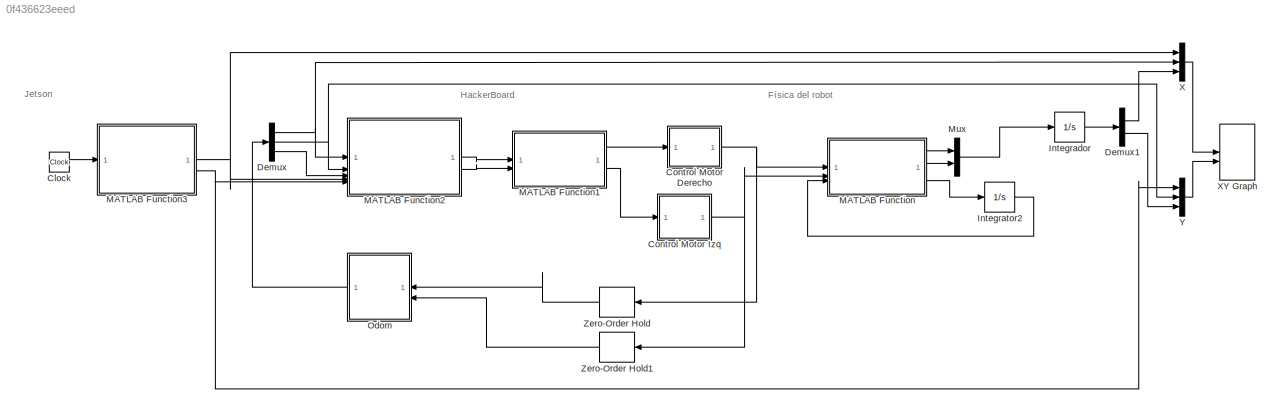
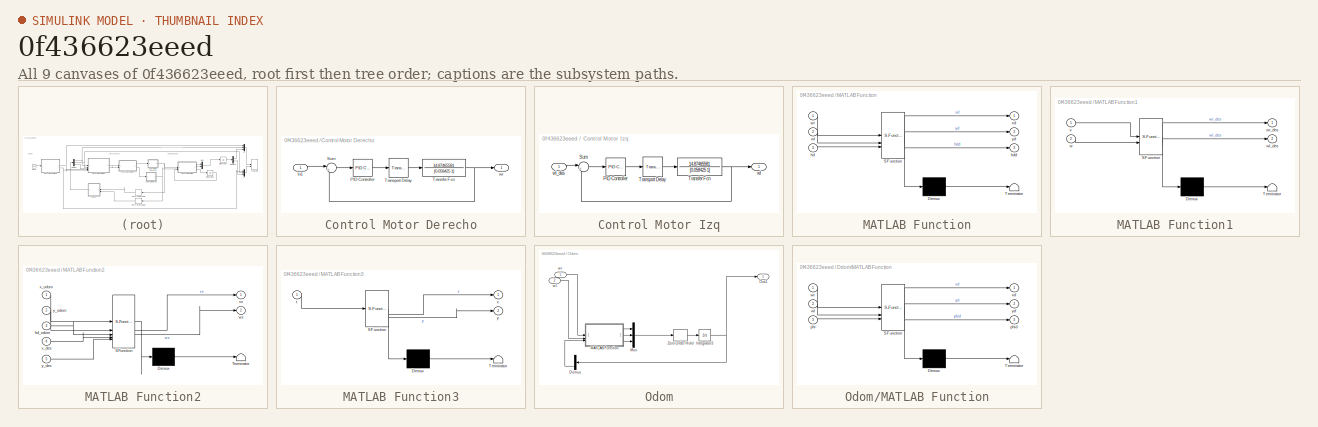
[diagram: thumbnail index - all 9 canvases of the model, root first then tree order]
MODEL slx_0f436623eeed
KIND model
CONFIG AbsTol = auto
CONFIG EnableMultiTasking = off
CONFIG FixedStep = auto
CONFIG MaxStep = auto
CONFIG MinStep = auto
CONFIG RelTol = 1e-3
CONFIG SampleTimeConstraint = Unconstrained
CONFIG SolverName = VariableStepAuto
CONFIG StartTime = 0.0
CONFIG StopTime = 220
BLOCK [Clock] Clock
BLOCK [SubSystem] Control Motor Derecho
BLOCK [Inport] Control Motor Derecho/In1
BLOCK [Reference] Control Motor Derecho/PID Controller  REF=slpidlib/PID Controller
  LibrarySourceBlock = simulink/Continuous/PID Controller
  SourceBlock = slpidlib/PID Controller
  SourceType = PID 1dof
BLOCK [Sum] Control Motor Derecho/Sum
  Inputs = |+-
BLOCK [TransferFcn] Control Motor Derecho/Transfer Fcn
  Denominator = [0.058425 1]
  Numerator = 14.87465581
BLOCK [TransportDelay] Control Motor Derecho/Transport Delay
  DelayTime = 0.043735
BLOCK [Outport] Control Motor Derecho/wr
BLOCK [SubSystem] Control Motor Izq
BLOCK [Reference] Control Motor Izq/PID Controller  REF=slpidlib/PID Controller
  LibrarySourceBlock = simulink/Continuous/PID Controller
  SourceBlock = slpidlib/PID Controller
  SourceType = PID 1dof
BLOCK [Sum] Control Motor Izq/Sum
  Inputs = |+-
BLOCK [TransferFcn] Control Motor Izq/Transfer Fcn
  Denominator = [0.058425 1]
  Numerator = 14.87465581
BLOCK [TransportDelay] Control Motor Izq/Transport Delay
  DelayTime = 0.043735
BLOCK [Outport] Control Motor Izq/wl
BLOCK [Inport] Control Motor Izq/wl_des
BLOCK [Demux] Demux
  Outputs = 3
BLOCK [Demux] Demux1
  Outputs = 2
BLOCK [Integrator] Integrador
  InitialCondition = [0,0]
BLOCK [Integrator] Integrator2
  ContinuousStateAttributes = 'orientation'
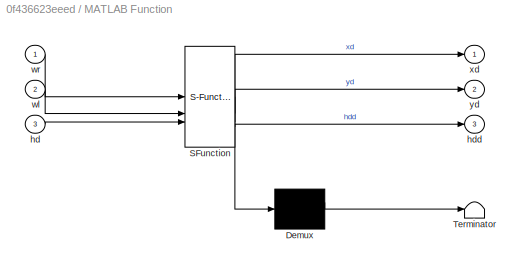
BLOCK [SubSystem] MATLAB Function
  ErrorFcn = Stateflow.Translate.translate
  PermitHierarchicalResolution = ExplicitOnly
  SFBlockType = MATLAB Function
  TreatAsAtomicUnit = on
BLOCK [Demux] MATLAB Function/ Demux 
  Outputs = 1
BLOCK [S-Function] MATLAB Function/ SFunction 
  EnableBusSupport = on
  FunctionName = sf_sfun
  PortCounts = [3 4]
  SFcnIsStateOwnerBlock = off
  SFunctionDeploymentMode = off
  Tag = Stateflow S-Function 2
BLOCK [Terminator] MATLAB Function/ Terminator 
BLOCK [Inport] MATLAB Function/hd
  Port = 3
BLOCK [Outport] MATLAB Function/hdd
  Port = 3
BLOCK [Inport] MATLAB Function/wl
  Port = 2
BLOCK [Inport] MATLAB Function/wr
BLOCK [Outport] MATLAB Function/xd
BLOCK [Outport] MATLAB Function/yd
  Port = 2
BLOCK [SubSystem] MATLAB Function1
  ErrorFcn = Stateflow.Translate.translate
  PermitHierarchicalResolution = ExplicitOnly
  SFBlockType = MATLAB Function
  TreatAsAtomicUnit = on
BLOCK [Demux] MATLAB Function1/ Demux 
  Outputs = 1
BLOCK [S-Function] MATLAB Function1/ SFunction 
  EnableBusSupport = on
  FunctionName = sf_sfun
  PortCounts = [2 3]
  SFcnIsStateOwnerBlock = off
  SFunctionDeploymentMode = off
  Tag = Stateflow S-Function 1
BLOCK [Terminator] MATLAB Function1/ Terminator 
BLOCK [Inport] MATLAB Function1/v
BLOCK [Inport] MATLAB Function1/w
  Port = 2
BLOCK [Outport] MATLAB Function1/wl_des
  Port = 2
BLOCK [Outport] MATLAB Function1/wr_des
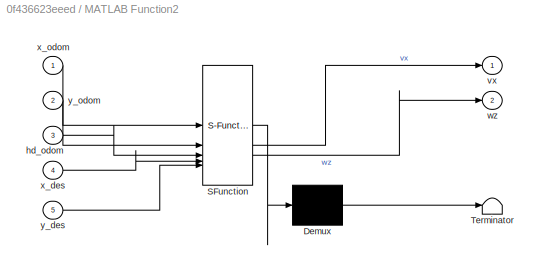
BLOCK [SubSystem] MATLAB Function2
  ErrorFcn = Stateflow.Translate.translate
  PermitHierarchicalResolution = ExplicitOnly
  SFBlockType = MATLAB Function
  TreatAsAtomicUnit = on
BLOCK [Demux] MATLAB Function2/ Demux 
  Outputs = 1
BLOCK [S-Function] MATLAB Function2/ SFunction 
  EnableBusSupport = on
  FunctionName = sf_sfun
  PortCounts = [5 3]
  SFcnIsStateOwnerBlock = off
  SFunctionDeploymentMode = off
  Tag = Stateflow S-Function 3
BLOCK [Terminator] MATLAB Function2/ Terminator 
BLOCK [Inport] MATLAB Function2/hd_odom
  Port = 3
BLOCK [Outport] MATLAB Function2/vx
BLOCK [Outport] MATLAB Function2/wz
  Port = 2
BLOCK [Inport] MATLAB Function2/x_des
  Port = 4
BLOCK [Inport] MATLAB Function2/x_odom
BLOCK [Inport] MATLAB Function2/y_des
  Port = 5
BLOCK [Inport] MATLAB Function2/y_odom
  Port = 2
BLOCK [SubSystem] MATLAB Function3
  ErrorFcn = Stateflow.Translate.translate
  PermitHierarchicalResolution = ExplicitOnly
  SFBlockType = MATLAB Function
  TreatAsAtomicUnit = on
BLOCK [Demux] MATLAB Function3/ Demux 
  Outputs = 1
BLOCK [S-Function] MATLAB Function3/ SFunction 
  EnableBusSupport = on
  FunctionName = sf_sfun
  PortCounts = [1 3]
  SFcnIsStateOwnerBlock = off
  SFunctionDeploymentMode = off
  Tag = Stateflow S-Function 5
BLOCK [Terminator] MATLAB Function3/ Terminator 
BLOCK [Inport] MATLAB Function3/t
BLOCK [Outport] MATLAB Function3/x
BLOCK [Outport] MATLAB Function3/y
  Port = 2
BLOCK [Mux] Mux
  DisplayOption = bar
  Inputs = 2
BLOCK [SubSystem] Odom
BLOCK [Demux] Odom/Demux
  Outputs = 3
BLOCK [Integrator] Odom/Integrator3
  InitialCondition = [0,0,0]
BLOCK [SubSystem] Odom/MATLAB Function
  ErrorFcn = Stateflow.Translate.translate
  PermitHierarchicalResolution = ExplicitOnly
  SFBlockType = MATLAB Function
  TreatAsAtomicUnit = on
BLOCK [Demux] Odom/MATLAB Function/ Demux 
  Outputs = 1
BLOCK [S-Function] Odom/MATLAB Function/ SFunction 
  EnableBusSupport = on
  FunctionName = sf_sfun
  PortCounts = [3 4]
  SFcnIsStateOwnerBlock = off
  SFunctionDeploymentMode = off
  Tag = Stateflow S-Function 4
BLOCK [Terminator] Odom/MATLAB Function/ Terminator 
BLOCK [Inport] Odom/MATLAB Function/phi
  Port = 3
BLOCK [Outport] Odom/MATLAB Function/phid
  Port = 3
BLOCK [Inport] Odom/MATLAB Function/wl
  Port = 2
BLOCK [Inport] Odom/MATLAB Function/wr
BLOCK [Outport] Odom/MATLAB Function/xd
BLOCK [Outport] Odom/MATLAB Function/yd
  Port = 2
BLOCK [Mux] Odom/Mux
  DisplayOption = bar
  Inputs = 3
BLOCK [Outport] Odom/Out1
BLOCK [ZeroOrderHold] Odom/Zero-Order Hold
  SampleTime = 0.01
BLOCK [Inport] Odom/wl
  Port = 2
BLOCK [Inport] Odom/wr
BLOCK [Mux] X
  DisplayOption = bar
  Inputs = 3
BLOCK [Record] XY Graph
  CompatibilityTag = XY
  FileSettingsInternal = {"entries":[{"content":{"excelSettings":{"content":{},"type":"Streamout.ExcelSettings"}},"type":"Streamout.FileSettingStorage","uuid":""}],"packageUris":["http:\/\/schema.mathworks.com\/mf0\/streamout_blocks\/R2020a"],"version":"1.0"}
  Layout = [1 1]
  SignalsInternal = {"entries":[{"content":{"signals":[{"content":{"blockPath":[],"dimensions":[3],"domain":"","hasChildren":true,"lineColor":"#fe330a","lineWidth":2,"port":1,"sid":[""],"signalID":1,"signalName":"X"},"type":"RecordBlkView.Signal","uuid":""},{"content":{"blockPath":[],"channel":[1],"dimensions":[3],"domain":"","lineColor":"#139fff","parentID":1,"plots":[ 1 ],"port":1,"sid":[""],"signalID":2,"signalNam...<+1480ch>
  VisualizationBindings = {"xyplotplugin":{"info":[{"series":[{"bindingParametersList":[{"parameter":"X-Axis","signalID":6,"signalName":"X(3)"},{"parameter":"Y-Axis","signalID":8,"signalName":"Y(3)"}],"seriesID":0},{"bindingParametersList":[{"parameter":"X-Axis","signalID":2,"signalName":"X(1)"},{"parameter":"Y-Axis","signalID":4,"signalName":"Y(1)"}],"seriesID":1},{"bindingParametersList":[{"parameter":"X-Axis","signalID"...<+113ch>
BLOCK [Mux] Y
  DisplayOption = bar
  Inputs = 3
BLOCK [ZeroOrderHold] Zero-Order Hold
  NameLocation = top
  SampleTime = 0.01
BLOCK [ZeroOrderHold] Zero-Order Hold1
  NameLocation = top
  SampleTime = 0.01
ANNOTATION (root): Física del robot
ANNOTATION (root): HackerBoard
ANNOTATION (root): Jetson
LINE Clock:1 -> MATLAB Function3:1
LINE Control Motor Derecho/In1:1 -> Control Motor Derecho/Sum:1
LINE Control Motor Derecho/PID Controller:1 -> Control Motor Derecho/Transport Delay:1
LINE Control Motor Derecho/Sum:1 -> Control Motor Derecho/PID Controller:1
NET Control Motor Derecho/Transfer Fcn:1 -> Control Motor Derecho/Sum:2, Control Motor Derecho/wr:1
LINE Control Motor Derecho/Transport Delay:1 -> Control Motor Derecho/Transfer Fcn:1
NET Control Motor Derecho:1 -> MATLAB Function:1, Zero-Order Hold:1
LINE Control Motor Izq/PID Controller:1 -> Control Motor Izq/Transport Delay:1
LINE Control Motor Izq/Sum:1 -> Control Motor Izq/PID Controller:1
NET Control Motor Izq/Transfer Fcn:1 -> Control Motor Izq/Sum:2, Control Motor Izq/wl:1
LINE Control Motor Izq/Transport Delay:1 -> Control Motor Izq/Transfer Fcn:1
LINE Control Motor Izq/wl_des:1 -> Control Motor Izq/Sum:1
NET Control Motor Izq:1 -> MATLAB Function:2, Zero-Order Hold1:1
LINE Demux1:1 -> X:3
LINE Demux1:2 -> Y:3
NET Demux:1 -> MATLAB Function2:1, X:2
NET Demux:2 -> MATLAB Function2:2, Y:2
LINE Demux:3 -> MATLAB Function2:3
LINE Integrador:1 -> Demux1:1
LINE Integrator2:1 -> MATLAB Function:3
LINE MATLAB Function1:1 -> Control Motor Derecho:1
LINE MATLAB Function1:2 -> Control Motor Izq:1
LINE MATLAB Function2:1 -> MATLAB Function1:1
LINE MATLAB Function2:2 -> MATLAB Function1:2
NET MATLAB Function3:1 -> MATLAB Function2:4, X:1
NET MATLAB Function3:2 -> MATLAB Function2:5, Y:1
LINE MATLAB Function:1 -> Mux:1
LINE MATLAB Function:2 -> Mux:2
LINE MATLAB Function:3 -> Integrator2:1
LINE Mux:1 -> Integrador:1
LINE Odom/Demux:3 -> Odom/MATLAB Function:3
NET Odom/Integrator3:1 -> Odom/Demux:1, Odom/Out1:1
LINE Odom/MATLAB Function:1 -> Odom/Mux:1
LINE Odom/MATLAB Function:2 -> Odom/Mux:2
LINE Odom/MATLAB Function:3 -> Odom/Mux:3
LINE Odom/Mux:1 -> Odom/Zero-Order Hold:1
LINE Odom/Zero-Order Hold:1 -> Odom/Integrator3:1
LINE Odom/wl:1 -> Odom/MATLAB Function:2
LINE Odom/wr:1 -> Odom/MATLAB Function:1
LINE Odom:1 -> Demux:1
LINE X:1 -> XY Graph:1
LINE Y:1 -> XY Graph:2
LINE Zero-Order Hold1:1 -> Odom:2
LINE Zero-Order Hold:1 -> Odom:1
note: NET lines group one-source signal fan-out (src -> all destinations, sorted); 1:1 wires keep LINE
CHART MATLAB Function1 states=1 transitions=1
  STATE_LABEL 'eML_blk_kernel()'
  STATE_LABEL 'SCRIPT:\nfunction [wr_des,wl_des] = IK(v,w) % Twist local\n% des se refiere a deseada. \n% Vx es la velocidad en x y wz es la velocidad angular en Z\nR=0.0505;\nb=0.1712;\n\nwr_des=(v/R)+(w*b/(2*R));\nwl_des=(v/R)-(w*b/(2*R));'
CHART MATLAB Function states=1 transitions=1
  STATE_LABEL 'eML_blk_kernel()'
  STATE_LABEL 'SCRIPT:\nfunction [xd, yd, hdd] = ROBOT(wr,wl,hd) %hd es heading\n% Heading es la dirección de movimiento y es letra griega phi\n% Las letras latinas son translacionales y letras griegas son rotacionales\n% El sufijo d en xd yd y hdd es por derivada (Se transforma en velocidad)\n% Además xd yd hdd están en el sistema de referencia fijo\n\nR=0.0505;%Metros\nb=0.1712; %Metros\n\nxd= (wr+wl)*(R/2)*cos(hd); %Vx...<+73ch>'
CHART MATLAB Function2 states=1 transitions=1
  STATE_LABEL 'eML_blk_kernel()'
  STATE_LABEL 'SCRIPT:\nfunction [vx, wz] = control(x_odom, y_odom, hd_odom, x_des, y_des)\n\n% Parámetros del controlador\nKl = 1;     % Ganancia proporcional para posición (modo 1 y 2)\nKw = 1.52;  % Ganancia proporcional para orientación\n\n% Definir el modo de control:\n% 1 = Turn while go\n% 2 = Turn then go\n% 3 = Lyapunov\n% 4 = Pure Pursuit\nmodo = 3;\n\n% Errores calculados\ndx = x_des - x_odom;\ndy = y_des - y_odom;\ne...<+2146ch>'
CHART Odom/MATLAB Function states=1 transitions=1
  STATE_LABEL 'eML_blk_kernel()'
  STATE_LABEL 'SCRIPT:\nfunction [xd, yd, phid] = cinematica(wr,wl,phi) %Psi es el heading.\n% El heading es la orientación (dirección del mov)\n% Las letras latina son translacionales, las letras griegas son\n% rotacionales)\n%El sufijo d significa (derivada) (Lo transforma en velocidad)\n\nR=0.0505;%Metros\nb=0.1712; %Metros\n\nxd= (wr+wl)*(R/2)*cos(phi); %Vxl*Cos(phi)\nyd= (wr+wl)*(R/2)*sin(phi); %Vxl*Sin(phi)\nphid=(wr-...<+13ch>'
CHART MATLAB Function3 states=1 transitions=1
  STATE_LABEL 'eML_blk_kernel()'
  STATE_LABEL 'SCRIPT:\nfunction [x, y] = PathPlanning(t)\n\n% Se cambia seno y coseno debido a la orientación y el desplazamiento \n% de las funciones como coseno desplazado pi/2 es seno\n%x = r*sin(w*t)\n    if t < 60\n        x = 2; y = 2;     % Cuadrante I\n    elseif t < 120\n        x = -2; y = 2;    % Cuadrante II\n    elseif t < 180\n        x = -2; y = -2;   % Cuadrante III\n    elseif t < 240\n        x = 2; y = -2...<+86ch>'
CHART  states=0 transitions=0
CHART  states=0 transitions=0
CHART  states=0 transitions=0
CHART  states=0 transitions=0
CHART  states=0 transitions=0
